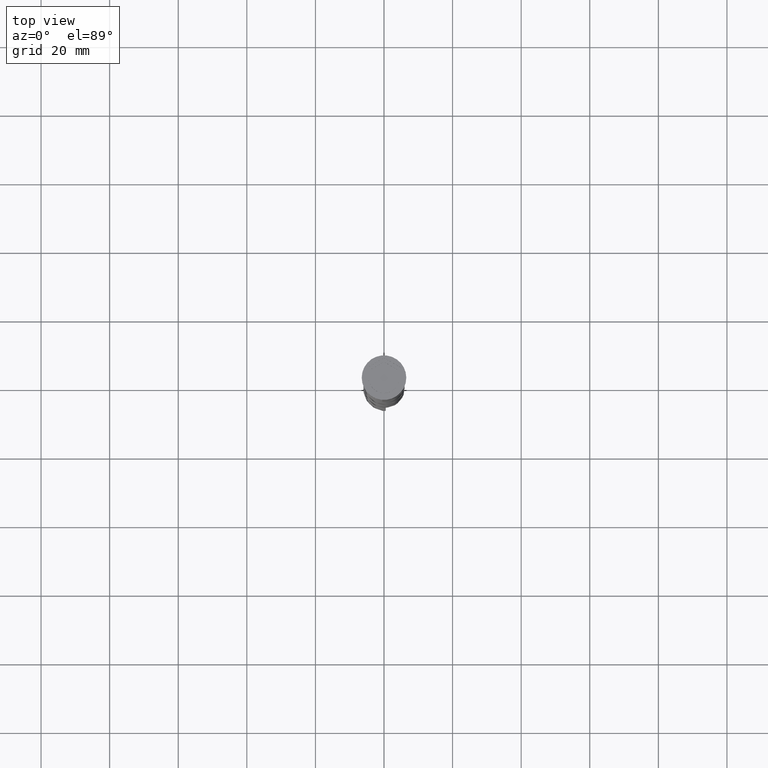
[diagram: clean part render]
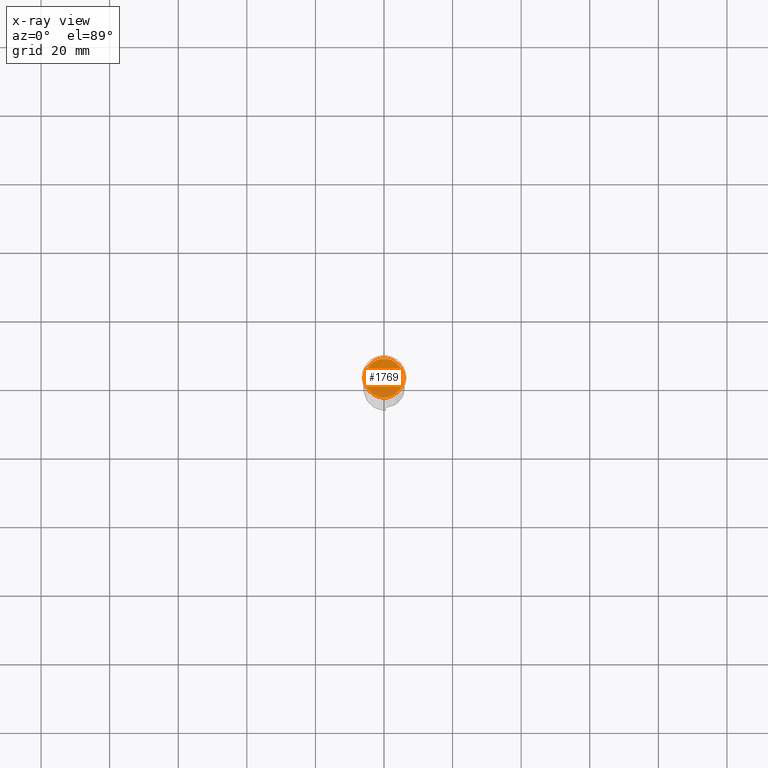
[diagram: x-ray — body ghosted, one internal face saturated and labeled with its STEP entity id]
A machine part, top view, then the same camera in x-ray: the body is ghosted and one INTERNAL B-rep face — a face not visible from any outside direction — is saturated and labeled: STEP entity #1769.
In plain terms, the highlighted planar face has unit normal (0, 0, -1).
Its self-contained STEP definition (entity closure, byte-faithful):
#51 = DIRECTION ( 'NONE',  ( -0.000000000000000000, -0.000000000000000000, 1.000000000000000000 ) ) ;
#128 = EDGE_CURVE ( 'NONE', #1230, #2939, #1813, .T. ) ;
#184 = CARTESIAN_POINT ( 'NONE',  ( 0.000000000000000000, 0.000000000000000000, -10.50000000000000178 ) ) ;
#216 = FACE_OUTER_BOUND ( 'NONE', #1901, .T. ) ;
#586 = CARTESIAN_POINT ( 'NONE',  ( -5.700000000000002842, 0.000000000000000000, -10.50000000000000178 ) ) ;
#1062 = DIRECTION ( 'NONE',  ( -1.000000000000000000, 0.000000000000000000, 0.000000000000000000 ) ) ;
#1083 = EDGE_CURVE ( 'NONE', #2939, #1230, #2314, .T. ) ;
#1151 = DIRECTION ( 'NONE',  ( 0.000000000000000000, 0.000000000000000000, -1.000000000000000000 ) ) ;
#1230 = VERTEX_POINT ( 'NONE', #586 ) ;
#1769 = ADVANCED_FACE ( 'NONE', ( #216 ), #2688, .F. ) ;
#1813 = CIRCLE ( 'NONE', #2001, 5.700000000000002842 ) ;
#1901 = EDGE_LOOP ( 'NONE', ( #3373, #2976 ) ) ;
#1947 = CARTESIAN_POINT ( 'NONE',  ( 5.700000000000002842, 7.164183775012019380E-16, -10.50000000000000178 ) ) ;
#2001 = AXIS2_PLACEMENT_3D ( 'NONE', #2489, #51, #2179 ) ;
#2179 = DIRECTION ( 'NONE',  ( -1.000000000000000000, 0.000000000000000000, 0.000000000000000000 ) ) ;
#2274 = DIRECTION ( 'NONE',  ( -0.000000000000000000, -0.000000000000000000, 1.000000000000000000 ) ) ;
#2314 = CIRCLE ( 'NONE', #3828, 5.700000000000002842 ) ;
#2489 = CARTESIAN_POINT ( 'NONE',  ( 0.000000000000000000, 0.000000000000000000, -10.50000000000000178 ) ) ;
#2627 = DIRECTION ( 'NONE',  ( -1.000000000000000000, 0.000000000000000000, -0.000000000000000000 ) ) ;
#2688 = PLANE ( 'NONE',  #3764 ) ;
#2939 = VERTEX_POINT ( 'NONE', #1947 ) ;
#2976 = ORIENTED_EDGE ( 'NONE', *, *, #1083, .T. ) ;
#3373 = ORIENTED_EDGE ( 'NONE', *, *, #128, .T. ) ;
#3565 = CARTESIAN_POINT ( 'NONE',  ( 0.000000000000000000, 0.000000000000000000, -10.50000000000000178 ) ) ;
#3764 = AXIS2_PLACEMENT_3D ( 'NONE', #3565, #1151, #2627 ) ;
#3828 = AXIS2_PLACEMENT_3D ( 'NONE', #184, #2274, #1062 ) ;